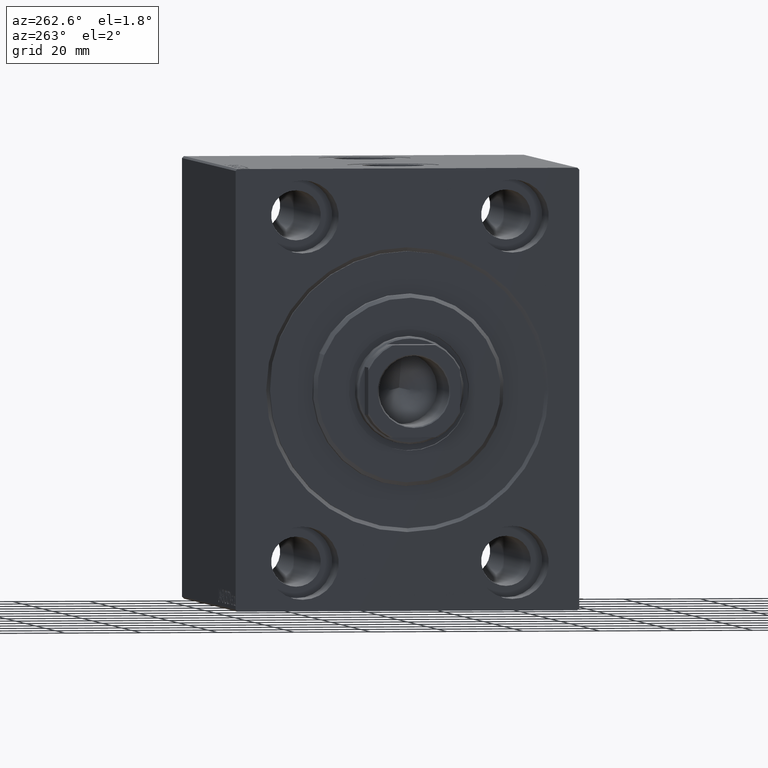
[diagram: clean part render]
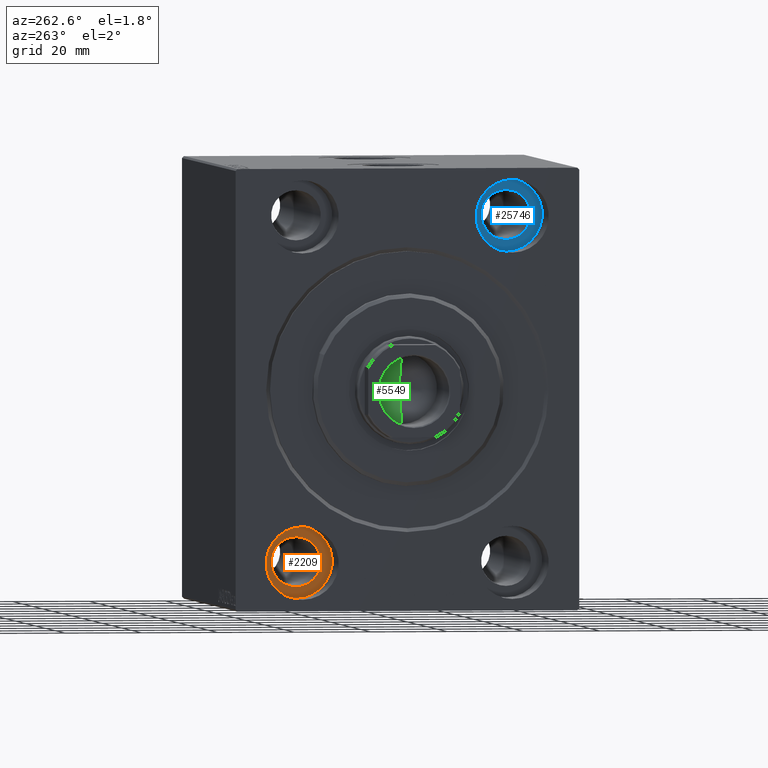
[diagram: same view with three faces highlighted in distinct colors, each labeled with its STEP entity id]
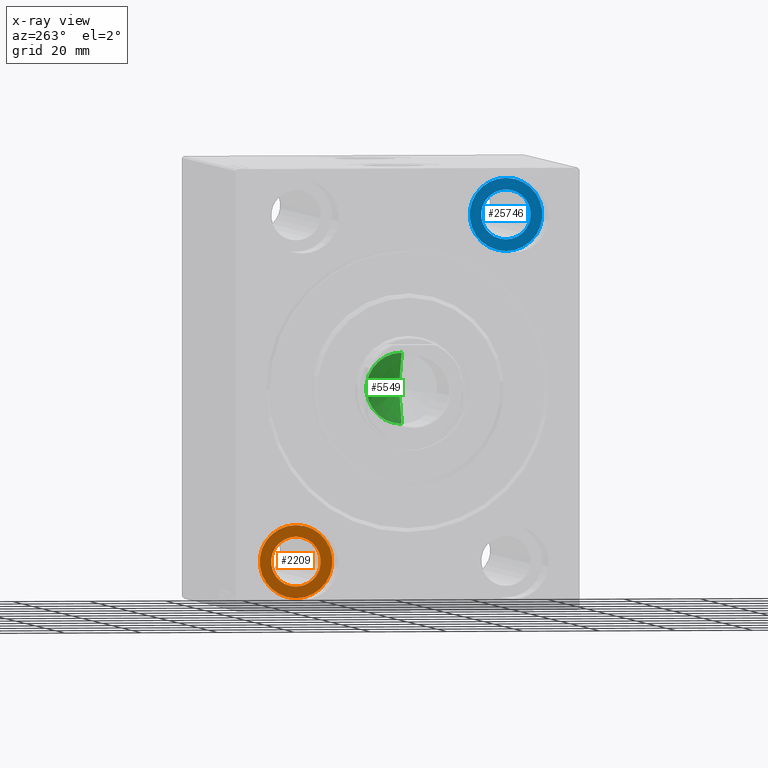
[diagram: x-ray of the same camera — body ghosted, the three highlighted faces saturated]
A machine part, auxiliary view with three faces highlighted in distinct colors.
The next image is the same camera in x-ray (body ghosted, the three faces saturated) — at least one of them is partly hidden behind the body in this view.
Their STEP definitions:

[orange] entity #2209 — the highlighted planar face has unit normal (-1, 0, 0).
#1 = VERTEX_POINT ( 'NONE', #18100 ) ;
#1119 = ORIENTED_EDGE ( 'NONE', *, *, #12786, .T. ) ;
#2197 = ORIENTED_EDGE ( 'NONE', *, *, #32239, .T. ) ;
#2209 = ADVANCED_FACE ( 'NONE', ( #11616, #5969 ), #39044, .T. ) ;
#5714 = DIRECTION ( 'NONE',  ( 0.000000000000000000, 0.000000000000000000, 1.000000000000000000 ) ) ;
#5790 = AXIS2_PLACEMENT_3D ( 'NONE', #8311, #39062, #39488 ) ;
#5969 = FACE_OUTER_BOUND ( 'NONE', #37216, .T. ) ;
#6506 = CIRCLE ( 'NONE', #5790, 9.500000000000001776 ) ;
#8311 = CARTESIAN_POINT ( 'NONE',  ( 13.00000000000000000, 27.49999999999998934, -44.99999999999998579 ) ) ;
#8512 = DIRECTION ( 'NONE',  ( -1.000000000000000000, 0.000000000000000000, 0.000000000000000000 ) ) ;
#9022 = VERTEX_POINT ( 'NONE', #41349 ) ;
#9598 = CIRCLE ( 'NONE', #40203, 9.500000000000001776 ) ;
#10546 = CARTESIAN_POINT ( 'NONE',  ( 13.00000000000000000, 27.49999999999998934, -35.49999999999998579 ) ) ;
#10548 = ORIENTED_EDGE ( 'NONE', *, *, #39245, .F. ) ;
#10574 = DIRECTION ( 'NONE',  ( -1.000000000000000000, 0.000000000000000000, 0.000000000000000000 ) ) ;
#11616 = FACE_BOUND ( 'NONE', #35109, .T. ) ;
#11639 = DIRECTION ( 'NONE',  ( 0.000000000000000000, 0.000000000000000000, 1.000000000000000000 ) ) ;
#12786 = EDGE_CURVE ( 'NONE', #23205, #28192, #9598, .T. ) ;
#14261 = ORIENTED_EDGE ( 'NONE', *, *, #41598, .F. ) ;
#18100 = CARTESIAN_POINT ( 'NONE',  ( 12.99999999999999822, 27.49999999999998934, -38.49999999999998579 ) ) ;
#18169 = AXIS2_PLACEMENT_3D ( 'NONE', #36374, #19017, #11639 ) ;
#19017 = DIRECTION ( 'NONE',  ( -1.000000000000000000, 0.000000000000000000, 0.000000000000000000 ) ) ;
#19570 = AXIS2_PLACEMENT_3D ( 'NONE', #36039, #22664, #5714 ) ;
#20125 = AXIS2_PLACEMENT_3D ( 'NONE', #21440, #8512, #26258 ) ;
#20617 = CARTESIAN_POINT ( 'NONE',  ( 13.00000000000000000, 27.49999999999998934, -44.99999999999998579 ) ) ;
#21440 = CARTESIAN_POINT ( 'NONE',  ( 13.00000000000000000, 27.49999999999998934, -44.99999999999998579 ) ) ;
#22664 = DIRECTION ( 'NONE',  ( -1.000000000000000000, 0.000000000000000000, 0.000000000000000000 ) ) ;
#23205 = VERTEX_POINT ( 'NONE', #10546 ) ;
#26258 = DIRECTION ( 'NONE',  ( 0.000000000000000000, 0.000000000000000000, 1.000000000000000000 ) ) ;
#28192 = VERTEX_POINT ( 'NONE', #43315 ) ;
#28792 = CIRCLE ( 'NONE', #19570, 6.499999999999999112 ) ;
#32239 = EDGE_CURVE ( 'NONE', #28192, #23205, #6506, .T. ) ;
#35109 = EDGE_LOOP ( 'NONE', ( #10548, #14261 ) ) ;
#36039 = CARTESIAN_POINT ( 'NONE',  ( 12.99999999999999822, 27.49999999999998934, -44.99999999999998579 ) ) ;
#36374 = CARTESIAN_POINT ( 'NONE',  ( 12.99999999999999822, 27.49999999999998934, -44.99999999999998579 ) ) ;
#37216 = EDGE_LOOP ( 'NONE', ( #1119, #2197 ) ) ;
#37369 = CIRCLE ( 'NONE', #18169, 6.499999999999999112 ) ;
#37770 = DIRECTION ( 'NONE',  ( 0.000000000000000000, 0.000000000000000000, 1.000000000000000000 ) ) ;
#39044 = PLANE ( 'NONE',  #20125 ) ;
#39062 = DIRECTION ( 'NONE',  ( -1.000000000000000000, 0.000000000000000000, 0.000000000000000000 ) ) ;
#39245 = EDGE_CURVE ( 'NONE', #1, #9022, #28792, .T. ) ;
#39488 = DIRECTION ( 'NONE',  ( 0.000000000000000000, 0.000000000000000000, 1.000000000000000000 ) ) ;
#40203 = AXIS2_PLACEMENT_3D ( 'NONE', #20617, #10574, #37770 ) ;
#41349 = CARTESIAN_POINT ( 'NONE',  ( 12.99999999999999822, 27.49999999999998934, -51.49999999999998579 ) ) ;
#41598 = EDGE_CURVE ( 'NONE', #9022, #1, #37369, .T. ) ;
#43315 = CARTESIAN_POINT ( 'NONE',  ( 13.00000000000000000, 27.49999999999998934, -54.49999999999998579 ) ) ;

[blue] entity #25746 — the highlighted planar face has unit normal (-1, 0, 0).
#1185 = CARTESIAN_POINT ( 'NONE',  ( 12.99999999999999822, -27.49999999999998934, 45.00000000000000711 ) ) ;
#2292 = DIRECTION ( 'NONE',  ( -1.000000000000000000, 0.000000000000000000, 0.000000000000000000 ) ) ;
#3070 = VERTEX_POINT ( 'NONE', #25599 ) ;
#3801 = AXIS2_PLACEMENT_3D ( 'NONE', #1185, #19014, #11869 ) ;
#6079 = VERTEX_POINT ( 'NONE', #30735 ) ;
#6650 = DIRECTION ( 'NONE',  ( -1.000000000000000000, 0.000000000000000000, 0.000000000000000000 ) ) ;
#8255 = ORIENTED_EDGE ( 'NONE', *, *, #39095, .T. ) ;
#8332 = FACE_BOUND ( 'NONE', #23417, .T. ) ;
#11869 = DIRECTION ( 'NONE',  ( 0.000000000000000000, 0.000000000000000000, 1.000000000000000000 ) ) ;
#12324 = PLANE ( 'NONE',  #18490 ) ;
#14973 = CARTESIAN_POINT ( 'NONE',  ( 12.99999999999999822, -27.49999999999998934, 51.50000000000000711 ) ) ;
#15393 = EDGE_CURVE ( 'NONE', #23702, #17120, #28879, .T. ) ;
#16264 = CIRCLE ( 'NONE', #31206, 9.500000000000001776 ) ;
#17120 = VERTEX_POINT ( 'NONE', #14973 ) ;
#18490 = AXIS2_PLACEMENT_3D ( 'NONE', #35734, #2292, #39292 ) ;
#19014 = DIRECTION ( 'NONE',  ( -1.000000000000000000, 0.000000000000000000, 0.000000000000000000 ) ) ;
#19061 = EDGE_LOOP ( 'NONE', ( #30835, #8255 ) ) ;
#19102 = DIRECTION ( 'NONE',  ( -1.000000000000000000, 0.000000000000000000, 0.000000000000000000 ) ) ;
#20553 = DIRECTION ( 'NONE',  ( -1.000000000000000000, 0.000000000000000000, 0.000000000000000000 ) ) ;
#20695 = CARTESIAN_POINT ( 'NONE',  ( 13.00000000000000000, -27.49999999999998934, 45.00000000000000711 ) ) ;
#23190 = AXIS2_PLACEMENT_3D ( 'NONE', #23453, #20553, #37042 ) ;
#23314 = DIRECTION ( 'NONE',  ( 0.000000000000000000, 0.000000000000000000, 1.000000000000000000 ) ) ;
#23417 = EDGE_LOOP ( 'NONE', ( #32747, #42592 ) ) ;
#23453 = CARTESIAN_POINT ( 'NONE',  ( 12.99999999999999822, -27.49999999999998934, 45.00000000000000711 ) ) ;
#23702 = VERTEX_POINT ( 'NONE', #44111 ) ;
#25599 = CARTESIAN_POINT ( 'NONE',  ( 13.00000000000000000, -27.49999999999998934, 54.50000000000000711 ) ) ;
#25746 = ADVANCED_FACE ( 'NONE', ( #8332, #32616 ), #12324, .T. ) ;
#28879 = CIRCLE ( 'NONE', #23190, 6.499999999999999112 ) ;
#29981 = CARTESIAN_POINT ( 'NONE',  ( 13.00000000000000000, -27.49999999999998934, 45.00000000000000711 ) ) ;
#30735 = CARTESIAN_POINT ( 'NONE',  ( 13.00000000000000000, -27.49999999999998934, 35.50000000000000711 ) ) ;
#30835 = ORIENTED_EDGE ( 'NONE', *, *, #33696, .T. ) ;
#30934 = DIRECTION ( 'NONE',  ( 0.000000000000000000, 0.000000000000000000, 1.000000000000000000 ) ) ;
#31206 = AXIS2_PLACEMENT_3D ( 'NONE', #20695, #6650, #30934 ) ;
#32616 = FACE_OUTER_BOUND ( 'NONE', #19061, .T. ) ;
#32747 = ORIENTED_EDGE ( 'NONE', *, *, #35169, .F. ) ;
#33055 = CIRCLE ( 'NONE', #38748, 9.500000000000001776 ) ;
#33696 = EDGE_CURVE ( 'NONE', #3070, #6079, #16264, .T. ) ;
#35169 = EDGE_CURVE ( 'NONE', #17120, #23702, #42249, .T. ) ;
#35734 = CARTESIAN_POINT ( 'NONE',  ( 13.00000000000000000, 0.000000000000000000, 0.000000000000000000 ) ) ;
#37042 = DIRECTION ( 'NONE',  ( 0.000000000000000000, 0.000000000000000000, 1.000000000000000000 ) ) ;
#38748 = AXIS2_PLACEMENT_3D ( 'NONE', #29981, #19102, #23314 ) ;
#39095 = EDGE_CURVE ( 'NONE', #6079, #3070, #33055, .T. ) ;
#39292 = DIRECTION ( 'NONE',  ( 0.000000000000000000, 0.000000000000000000, 1.000000000000000000 ) ) ;
#42249 = CIRCLE ( 'NONE', #3801, 6.499999999999999112 ) ;
#42592 = ORIENTED_EDGE ( 'NONE', *, *, #15393, .F. ) ;
#44111 = CARTESIAN_POINT ( 'NONE',  ( 12.99999999999999822, -27.49999999999998934, 38.50000000000000711 ) ) ;

[green] entity #5549 — the highlighted conical surface has half-angle 59 deg.
#2208 = EDGE_CURVE ( 'NONE', #38051, #36477, #32125, .T. ) ;
#3122 = ORIENTED_EDGE ( 'NONE', *, *, #12620, .T. ) ;
#4481 = VECTOR ( 'NONE', #5159, 1000.000000000000000 ) ;
#5159 = DIRECTION ( 'NONE',  ( -0.8571673007021113344, 1.049727191138617463E-16, 0.5150380749100558209 ) ) ;
#5305 = CARTESIAN_POINT ( 'NONE',  ( -9.249999999999994671, 1.132798289211300909E-15, 79.00000000000001421 ) ) ;
#5549 = ADVANCED_FACE ( 'NONE', ( #11220 ), #30837, .F. ) ;
#6661 = AXIS2_PLACEMENT_3D ( 'NONE', #25706, #12123, #28839 ) ;
#8288 = CARTESIAN_POINT ( 'NONE',  ( -9.249999999999994671, 1.132798289211300909E-15, 79.00000000000001421 ) ) ;
#10777 = DIRECTION ( 'NONE',  ( 1.000000000000000000, 0.000000000000000000, 0.000000000000000000 ) ) ;
#11123 = VERTEX_POINT ( 'NONE', #33271 ) ;
#11220 = FACE_OUTER_BOUND ( 'NONE', #32983, .T. ) ;
#12123 = DIRECTION ( 'NONE',  ( -0.000000000000000000, -0.000000000000000000, 1.000000000000000000 ) ) ;
#12620 = EDGE_CURVE ( 'NONE', #38051, #11123, #28893, .T. ) ;
#12891 = CARTESIAN_POINT ( 'NONE',  ( -6.793016015247754405E-15, 0.000000000000000000, 73.44203927399506426 ) ) ;
#13068 = CIRCLE ( 'NONE', #6661, 9.249999999999994671 ) ;
#18783 = AXIS2_PLACEMENT_3D ( 'NONE', #41317, #27721, #10777 ) ;
#21773 = CARTESIAN_POINT ( 'NONE',  ( 9.249999999999994671, 0.000000000000000000, 79.00000000000001421 ) ) ;
#23747 = ORIENTED_EDGE ( 'NONE', *, *, #2208, .F. ) ;
#25706 = CARTESIAN_POINT ( 'NONE',  ( 0.000000000000000000, 0.000000000000000000, 79.00000000000001421 ) ) ;
#27721 = DIRECTION ( 'NONE',  ( -0.000000000000000000, -0.000000000000000000, 1.000000000000000000 ) ) ;
#28839 = DIRECTION ( 'NONE',  ( 1.000000000000000000, 0.000000000000000000, 0.000000000000000000 ) ) ;
#28893 = LINE ( 'NONE', #21773, #33764 ) ;
#30837 = CONICAL_SURFACE ( 'NONE', #18783, 9.249999999999994671, 1.029744258676652535 ) ;
#32125 = LINE ( 'NONE', #8288, #4481 ) ;
#32983 = EDGE_LOOP ( 'NONE', ( #23747, #3122, #41768 ) ) ;
#33271 = CARTESIAN_POINT ( 'NONE',  ( 9.249999999999994671, 0.000000000000000000, 79.00000000000001421 ) ) ;
#33764 = VECTOR ( 'NONE', #42056, 1000.000000000000000 ) ;
#36477 = VERTEX_POINT ( 'NONE', #5305 ) ;
#37700 = EDGE_CURVE ( 'NONE', #11123, #36477, #13068, .T. ) ;
#38051 = VERTEX_POINT ( 'NONE', #12891 ) ;
#41317 = CARTESIAN_POINT ( 'NONE',  ( 0.000000000000000000, 0.000000000000000000, 79.00000000000001421 ) ) ;
#41768 = ORIENTED_EDGE ( 'NONE', *, *, #37700, .T. ) ;
#42056 = DIRECTION ( 'NONE',  ( 0.8571673007021113344, 0.000000000000000000, 0.5150380749100558209 ) ) ;